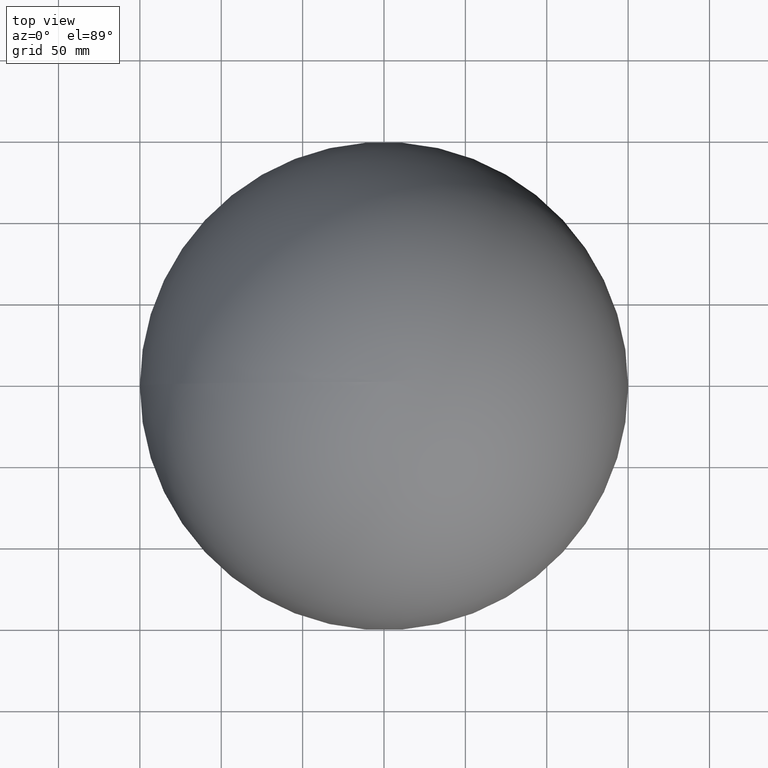
[diagram: clean part render]
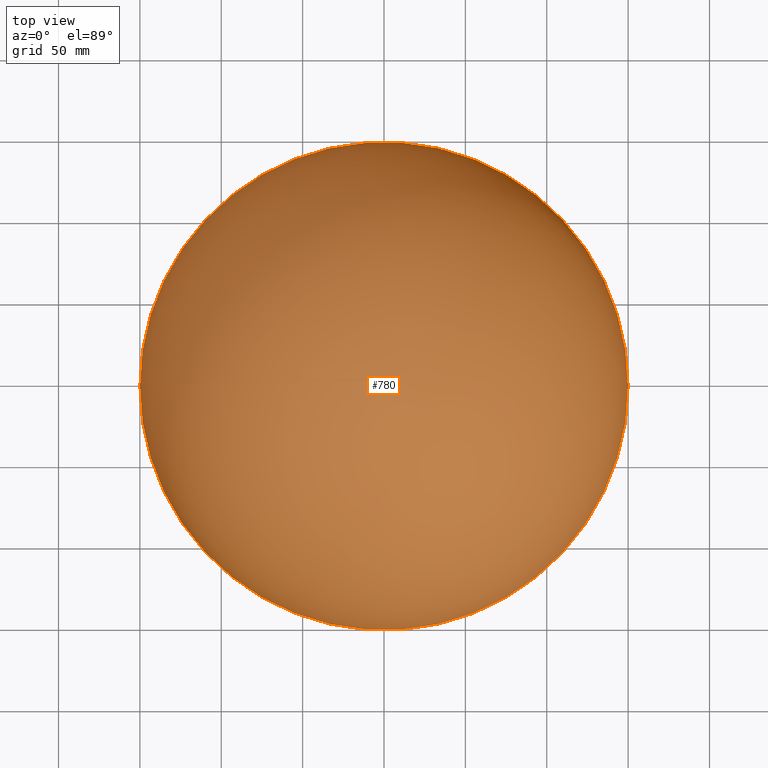
[diagram: same view with one face highlighted and labeled with its STEP entity id]
A machine part, top view. The second image highlights one B-rep face of the part: STEP entity #780.
In plain terms, the highlighted spherical surface has radius 150 mm.
Its self-contained STEP definition (entity closure, byte-faithful):
#585 = DIRECTION ( 'NONE',  ( -1.000000000000000000, 0.000000000000000000, -6.982962677686266711E-15 ) ) ;
#701 = ORIENTED_EDGE ( 'NONE', *, *, #8823, .F. ) ;
#780 = ADVANCED_FACE ( 'NONE', ( #11193 ), #6660, .T. ) ;
#1094 = AXIS2_PLACEMENT_3D ( 'NONE', #10868, #5924, #585 ) ;
#1327 = VERTEX_POINT ( 'NONE', #9043 ) ;
#1638 = DIRECTION ( 'NONE',  ( 6.982962677686266711E-15, 0.000000000000000000, -1.000000000000000000 ) ) ;
#2422 = CARTESIAN_POINT ( 'NONE',  ( 0.000000000000000000, 0.000000000000000000, 0.000000000000000000 ) ) ;
#2838 = ORIENTED_EDGE ( 'NONE', *, *, #9070, .F. ) ;
#3787 = AXIS2_PLACEMENT_3D ( 'NONE', #2422, #1638, #9457 ) ;
#3825 = CARTESIAN_POINT ( 'NONE',  ( -150.0000000000000000, 0.000000000000000000, -1.047444401652940057E-12 ) ) ;
#4516 = DIRECTION ( 'NONE',  ( 6.982962677686266711E-15, 0.000000000000000000, -1.000000000000000000 ) ) ;
#5236 = CARTESIAN_POINT ( 'NONE',  ( 0.000000000000000000, 0.000000000000000000, 0.000000000000000000 ) ) ;
#5361 = CIRCLE ( 'NONE', #6565, 150.0000000000000000 ) ;
#5924 = DIRECTION ( 'NONE',  ( -6.982962677686266711E-15, 0.000000000000000000, 1.000000000000000000 ) ) ;
#6565 = AXIS2_PLACEMENT_3D ( 'NONE', #5236, #4516, #9701 ) ;
#6660 = SPHERICAL_SURFACE ( 'NONE', #1094, 150.0000000000000000 ) ;
#8249 = EDGE_LOOP ( 'NONE', ( #2838, #701 ) ) ;
#8823 = EDGE_CURVE ( 'NONE', #1327, #9181, #5361, .T. ) ;
#9043 = CARTESIAN_POINT ( 'NONE',  ( 150.0000000000000000, 1.836970198721029747E-14, 1.047444401652940057E-12 ) ) ;
#9070 = EDGE_CURVE ( 'NONE', #9181, #1327, #9450, .T. ) ;
#9181 = VERTEX_POINT ( 'NONE', #3825 ) ;
#9450 = CIRCLE ( 'NONE', #3787, 150.0000000000000000 ) ;
#9457 = DIRECTION ( 'NONE',  ( -1.000000000000000000, 0.000000000000000000, -6.982962677686266711E-15 ) ) ;
#9701 = DIRECTION ( 'NONE',  ( -1.000000000000000000, 0.000000000000000000, -6.982962677686266711E-15 ) ) ;
#10868 = CARTESIAN_POINT ( 'NONE',  ( 0.000000000000000000, 0.000000000000000000, 0.000000000000000000 ) ) ;
#11193 = FACE_OUTER_BOUND ( 'NONE', #8249, .T. ) ;